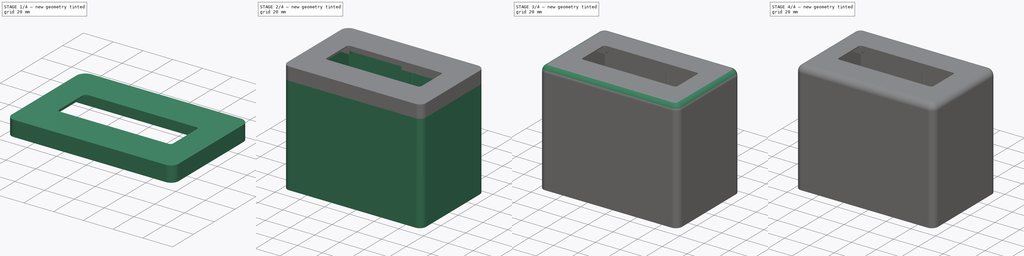
[diagram: build sequence overview — one tinted view per stage of 4, left to right]
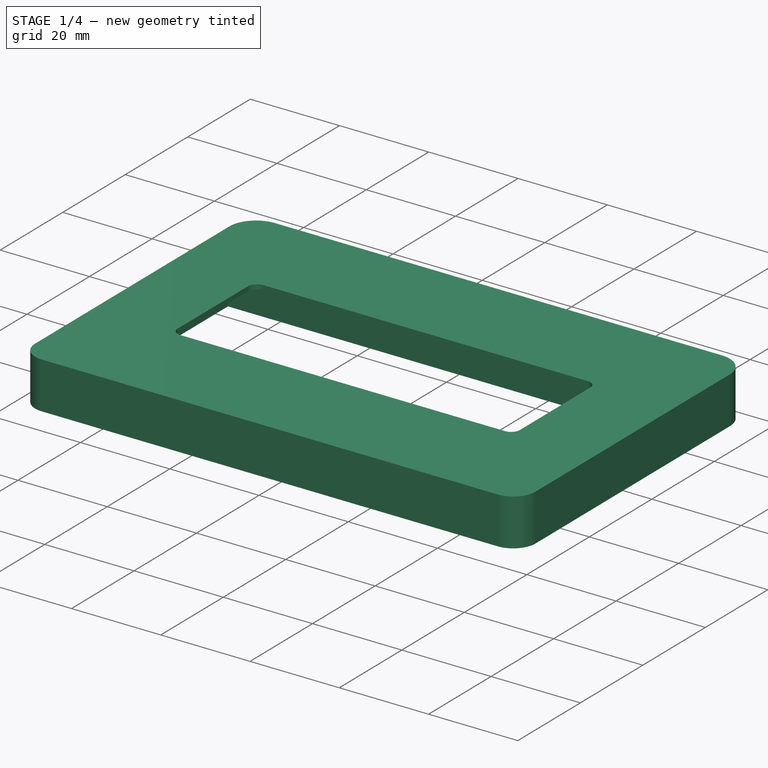
[diagram: stage 1 of 4 — iso view after this stage's code; geometry added in this stage tinted green]
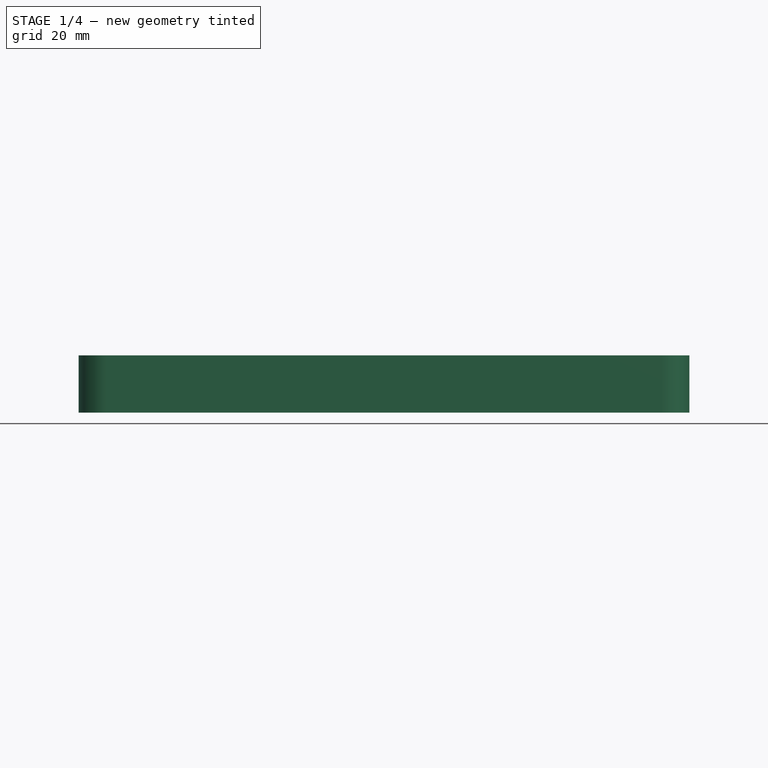
[diagram: stage 1 of 4 — front view after this stage's code; geometry added in this stage tinted green]
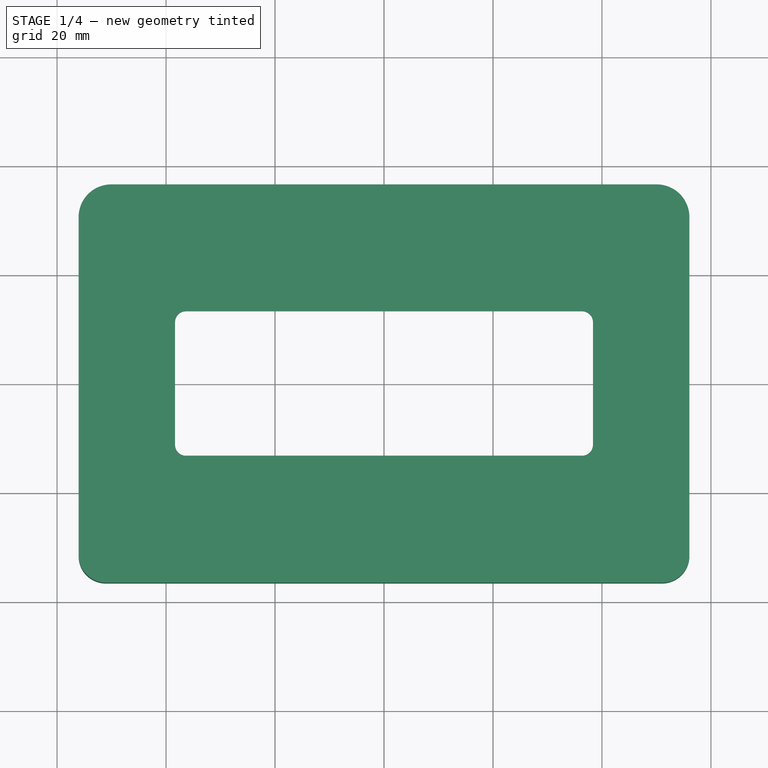
[diagram: stage 1 of 4 — top view after this stage's code; geometry added in this stage tinted green]
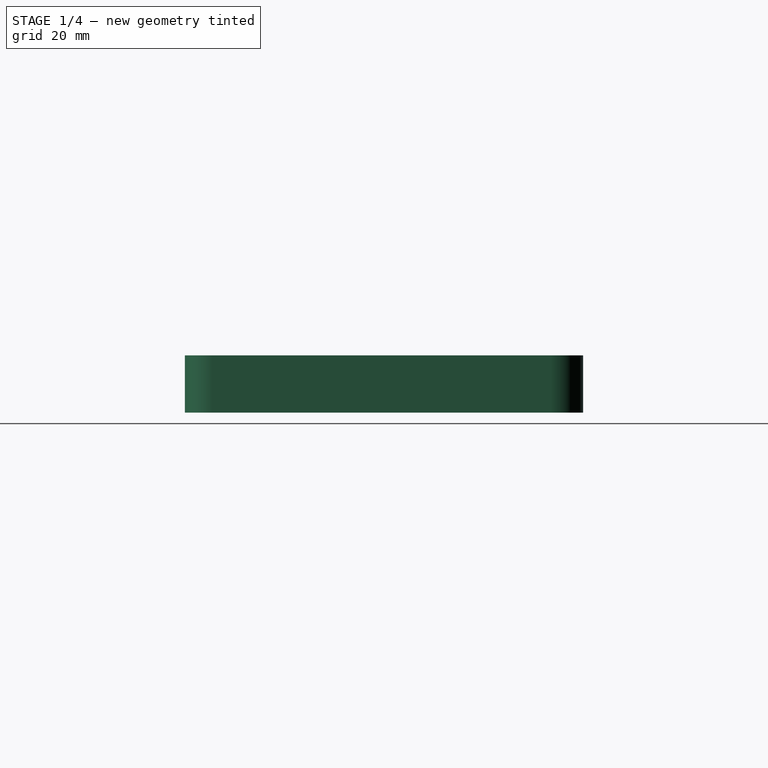
[diagram: stage 1 of 4 — right view after this stage's code; geometry added in this stage tinted green]
FCSTD DOCUMENT  (FreeCAD 0.20R29177 +426 (Git))
Label: box_lcd_cover
License: All rights reserved
LicenseURL: http://en.wikipedia.org/wiki/All_rights_reserved
objects: Sketcher::SketchObject×9, PartDesign::Pocket×7, PartDesign::Pad×2, PartDesign::Fillet×2, Spreadsheet::Sheet×1, PartDesign::Body×1
note: 32 computed .brp shape members not serialized (recipe doc carries the construction recipe); baked Part::Feature solids carry a one-line shape summary decoded from their .brp

FEATURE [Spreadsheet::Sheet] Spreadsheet  label="data"
  cells = A1=Name; B1=Value; A2=lcd_ylen; B2(lcd_ylen)==40mm; A3=lcd_xlen; B3(lcd_xlen)==98.09999999999999mm; A4=space; B4(space)==0.4mm; A5=base_lcd_ylen; B5(base_lcd_ylen)==60.1mm; A6=lcd_depth; B6(lcd_depth)==9.5mm; A7=solder_depth; B7(solder_depth)==2mm; A8=wall_side_len; B8(wall_side_len)==2mm; A9=cover_depth; B9(cover_depth)==1mm; A10=screen_xlen; B10(screen_xlen)==76.7mm; A11=screen_ylen; B11(screen_ylen)==26.5mm; A12=hole_dia; B12(hole_dia)==3.4mm; A13=screw_dia; B13(screw_dia)==2.9mm; A14=screw_depth; B14(screw_depth)==5mm; A15=button_len; B15(button_len)==6.4mm; A16=cover_button_
FEATURE [Sketcher::SketchObject] Sketch
  FullyConstrained = true
  MapMode = 5
  Support = -> [XY_Plane]
  expr: .Constraints.bot_rad = 5
  expr: .Constraints.top_rad = <<data>>.wall_side_len * 3
  expr: .Constraints.xlen = <<data>>.lcd_xlen + <<data>>.wall_side_len * 2
  expr: .Constraints.ylen = <<data>>.base_lcd_ylen + <<data>>.wall_side_len
  expr: Constraints[54] = <<data>>.base_lcd_ylen
  expr: Constraints[56] = <<data>>.lcd_xlen + <<data>>.space * 2
  sketch-geometry (25):
    g0: LineSegment StartX=-56.05 StartY=30.55 StartZ=0 EndX=-56.05 EndY=-31.55 EndZ=0
    g1: LineSegment StartX=56.05 StartY=-31.55 StartZ=0 EndX=56.05 EndY=30.55 EndZ=0
    g2: GeomPoint X=0 Y=0 Z=0
    g3: LineSegment StartX=-56.05 StartY=30.55 StartZ=0 EndX=56.05 EndY=30.55 EndZ=0
    g4: LineSegment StartX=-50.05 StartY=36.55 StartZ=0 EndX=0 EndY=36.55 EndZ=0
    g5: LineSegment StartX=0 StartY=36.55 StartZ=0 EndX=50.05 EndY=36.55 EndZ=0
    g6: ArcOfCircle CenterX=-50.05 CenterY=30.55 CenterZ=0 NormalX=0 NormalY=0 NormalZ=1 AngleXU=0 Radius=6 StartAngle=1.5708 EndAngle=3.14159
    g7: ArcOfCircle CenterX=50.05 CenterY=30.55 CenterZ=0 NormalX=0 NormalY=0 NormalZ=1 AngleXU=0 Radius=6 StartAngle=3e-16 EndAngle=1.5708
    g8: LineSegment StartX=-50.05 StartY=30.55 StartZ=0 EndX=-50.05 EndY=36.55 EndZ=0
    g9: LineSegment StartX=50.05 StartY=36.55 StartZ=0 EndX=50.05 EndY=30.55 EndZ=0
    g10: ArcOfCircle CenterX=-51.05 CenterY=-31.55 CenterZ=0 NormalX=0 NormalY=0 NormalZ=1 AngleXU=0 Radius=5 StartAngle=3.14159 EndAngle=4.71239
    g11: ArcOfCircle CenterX=51.05 CenterY=-31.55 CenterZ=0 NormalX=0 NormalY=0 NormalZ=1 AngleXU=0 Radius=5 StartAngle=4.71239 EndAngle=6.28319
    g12: LineSegment StartX=-51.05 StartY=-31.55 StartZ=0 EndX=-56.05 EndY=-31.55 EndZ=0
    g13: LineSegment StartX=-51.05 StartY=-31.55 StartZ=0 EndX=-51.05 EndY=-36.55 EndZ=0
    g14: LineSegment StartX=51.05 StartY=-31.55 StartZ=0 EndX=51.05 EndY=-36.55 EndZ=0
    g15: LineSegment StartX=56.05 StartY=-31.55 StartZ=0 EndX=51.05 EndY=-31.55 EndZ=0
    g16: LineSegment StartX=0 StartY=0 StartZ=0 EndX=0 EndY=-36.55 EndZ=0
    g17: LineSegment StartX=0 StartY=0 StartZ=0 EndX=0 EndY=36.55 EndZ=0
    g18: GeomPoint X=0 Y=0 Z=0
    g19: LineSegment StartX=-49.45 StartY=30.05 StartZ=0 EndX=-49.45 EndY=-30.05 EndZ=0
    g20: LineSegment StartX=-49.45 StartY=-30.05 StartZ=0 EndX=49.45 EndY=-30.05 EndZ=0
    g21: LineSegment StartX=49.45 StartY=-30.05 StartZ=0 EndX=49.45 EndY=30.05 EndZ=0
    g22: LineSegment StartX=49.45 StartY=30.05 StartZ=0 EndX=-49.45 EndY=30.05 EndZ=0
    g23: GeomPoint X=0 Y=0 Z=0
    g24: LineSegment StartX=-51.05 StartY=-36.55 StartZ=0 EndX=51.05 EndY=-36.55 EndZ=0
  constraints (62):
    c: Vertical(g0)
    c: Vertical(g1)
    c: Coincident(g2,g-1)
    c: Coincident(g3,g0)
    c: Coincident(g3,g1)
    c: Horizontal(g3)
    c: PointOnObject(g4,g-2)
    c: Horizontal(g4)
    c: Coincident(g5,g4)
    c: Horizontal(g5)
    c: Equal(g5,g4)
    c: Coincident(g6,g4)
    c: Coincident(g6,g0)
    c: Coincident(g7,g5)
    c: Coincident(g7,g1)
    c: PointOnObject(g7,g3)
    c: PointOnObject(g6,g3)
    c: Coincident(g8,g6)
    c: Coincident(g8,g4)
    c: Vertical(g8)
    c: Coincident(g9,g5)
    c: Coincident(g9,g7)
    c: Coincident(g13,g10) = -1.5708
    c: Tangent(g0,g10) = -1.5708
    c: Tangent(g1,g11) = -1.5708
    c: Coincident(g14,g11) = -1.5708
    c: Equal(g11,g10)
    c: Coincident(g12,g10)
    c: Coincident(g12,g0)
    c: Coincident(g13,g10)
    c: Coincident(g14,g11)
    c: Coincident(g15,g1)
    c: Coincident(g15,g11)
    c: Vertical(g9)
    c: Coincident(g16,g2)
    c: Vertical(g16)
    c: Coincident(g17,g2)
    c: Coincident(g17,g4)
    c: Equal(g17,g16)
    c: DistanceY(g13,g13) = 5  'bot_rad'
    c: DistanceX(g13,g14) = 102.1  'xlen'
    c: DistanceY(g0,g0) = 62.1  'ylen'
    c: DistanceY(g8,g8) = 6  'top_rad'
    c: Coincident(g18,g2)
    c: Coincident(g19,g20)
    c: Coincident(g20,g21)
    c: Coincident(g21,g22)
    c: Coincident(g22,g19)
    c: Horizontal(g20)
    c: Horizontal(g22)
    c: Vertical(g19)
    c: Vertical(g21)
    c: Symmetric(g20,g19,g23)
    c: Coincident(g23,g2)
    c: DistanceY(g21,g21) = 60.1
    c: Vertical(g13)
    c: DistanceX(g20,g20) = 98.9
    c: Vertical(g14)
    c: Coincident(g24,g10)
    c: Coincident(g24,g11)
    c: Horizontal(g24)
    c: PointOnObject(g16,g24)
FEATURE [PartDesign::Pad] Pad
  Direction = (0,0,1)
  Length = 10.5
  Length2 = 10
  Profile = -> Sketch
  ReferenceAxis = -> Sketch [N_Axis]
  Type = 0
  expr: Length = <<data>>.lcd_depth + <<data>>.cover_depth
FEATURE [Sketcher::SketchObject] Sketch001
  FullyConstrained = true
  MapMode = 5
  Support = -> [XY_Plane]
  expr: Constraints[10] = <<data>>.lcd_ylen + <<data>>.space * 2
  expr: Constraints[11] = <<data>>.lcd_xlen + <<data>>.space
  sketch-geometry (5):
    g0: LineSegment StartX=-49.25 StartY=20.4 StartZ=0 EndX=-49.25 EndY=-20.4 EndZ=0
    g1: LineSegment StartX=-49.25 StartY=-20.4 StartZ=0 EndX=49.25 EndY=-20.4 EndZ=0
    g2: LineSegment StartX=49.25 StartY=-20.4 StartZ=0 EndX=49.25 EndY=20.4 EndZ=0
    g3: LineSegment StartX=49.25 StartY=20.4 StartZ=0 EndX=-49.25 EndY=20.4 EndZ=0
    g4: GeomPoint X=0 Y=0 Z=0
  constraints (12):
    c: Coincident(g0,g1)
    c: Coincident(g1,g2)
    c: Coincident(g2,g3)
    c: Coincident(g3,g0)
    c: Horizontal(g1)
    c: Horizontal(g3)
    c: Vertical(g0)
    c: Vertical(g2)
    c: Symmetric(g1,g0,g4)
    c: Coincident(g4,g-1)
    c: DistanceY(g0,g0) = 40.8
    c: DistanceX(g1,g1) = 98.5
FEATURE [PartDesign::Pocket] Pocket
  BaseFeature = -> Pad
  Direction = (0,0,-1)
  Length = 9.5
  Length2 = 5
  Profile = -> Sketch001
  ReferenceAxis = -> Sketch001 [N_Axis]
  Reversed = true
  Type = 0
  expr: Length = <<data>>.lcd_depth
FEATURE [Sketcher::SketchObject] Sketch002
  FullyConstrained = true
  MapMode = 5
  Support = -> [XY_Plane]
  expr: Constraints[33] = <<data>>.screen_xlen
  expr: Constraints[34] = <<data>>.screen_ylen
  sketch-geometry (14):
    g0: ArcOfCircle CenterX=-36.35 CenterY=11.25 CenterZ=0 NormalX=0 NormalY=0 NormalZ=1 AngleXU=0 Radius=2 StartAngle=1.5708 EndAngle=3.14159
    g1: LineSegment StartX=-36.35 StartY=13.25 StartZ=0 EndX=36.35 EndY=13.25 EndZ=0
    g2: ArcOfCircle CenterX=36.35 CenterY=11.25 CenterZ=0 NormalX=0 NormalY=0 NormalZ=1 AngleXU=0 Radius=2 StartAngle=4e-16 EndAngle=1.5708
    g3: LineSegment StartX=38.35 StartY=11.25 StartZ=0 EndX=38.35 EndY=-11.25 EndZ=0
    g4: ArcOfCircle CenterX=36.35 CenterY=-11.25 CenterZ=0 NormalX=0 NormalY=0 NormalZ=1 AngleXU=0 Radius=2 StartAngle=4.71239 EndAngle=6.28319
    g5: LineSegment StartX=36.35 StartY=-13.25 StartZ=0 EndX=-36.35 EndY=-13.25 EndZ=0
    g6: ArcOfCircle CenterX=-36.35 CenterY=-11.25 CenterZ=0 NormalX=0 NormalY=0 NormalZ=1 AngleXU=0 Radius=2 StartAngle=3.14159 EndAngle=4.71239
    g7: LineSegment StartX=-38.35 StartY=-11.25 StartZ=0 EndX=-38.35 EndY=11.25 EndZ=0
    g8: GeomPoint X=-38.35 Y=13.25 Z=0
    g9: GeomPoint X=38.35 Y=-13.25 Z=0
    g10: LineSegment StartX=0 StartY=0 StartZ=0 EndX=0 EndY=13.25 EndZ=0
    g11: LineSegment StartX=0 StartY=0 StartZ=0 EndX=0 EndY=-13.25 EndZ=0
    g12: LineSegment StartX=0 StartY=0 StartZ=0 EndX=-38.35 EndY=0 EndZ=0
    g13: LineSegment StartX=0 StartY=0 StartZ=0 EndX=38.35 EndY=0 EndZ=0
  constraints (36):
    c: Tangent(g0,g1) = 1.5708
    c: Tangent(g1,g2) = 1.5708
    c: Tangent(g2,g3) = 1.5708
    c: Tangent(g3,g4) = 1.5708
    c: Tangent(g4,g5) = 1.5708
    c: Tangent(g5,g6) = 1.5708
    c: Tangent(g6,g7) = 1.5708
    c: Tangent(g7,g0) = 1.5708
    c: Horizontal(g1)
    c: Horizontal(g5)
    c: Vertical(g3)
    c: Vertical(g7)
    c: Equal(g0,g2)
    c: Equal(g2,g4)
    c: Equal(g4,g6)
    c: PointOnObject(g8,g1)
    c: PointOnObject(g8,g7)
    c: PointOnObject(g9,g3)
    c: PointOnObject(g9,g5)
    c: Coincident(g10,g-1)
    c: PointOnObject(g10,g1)
    c: Vertical(g10)
    c: Coincident(g11,g10)
    c: PointOnObject(g11,g5)
    c: Vertical(g11)
    c: Coincident(g12,g10)
    c: PointOnObject(g12,g7)
    c: Horizontal(g12)
    c: Coincident(g13,g10)
    c: PointOnObject(g13,g3)
    c: Horizontal(g13)
    c: Equal(g10,g11)
    c: Equal(g12,g13)
    c: DistanceX(g6,g3) = 76.7
    c: DistanceY(g5,g0) = 26.5
    c: DistanceX(g0,g0) = 2
FEATURE [PartDesign::Pocket] Pocket001
  BaseFeature = -> Pocket
  Direction = (0,0,-1)
  Length = 5
  Length2 = 5
  Profile = -> Sketch002
  ReferenceAxis = -> Sketch002 [N_Axis]
  Reversed = true
  Type = 1
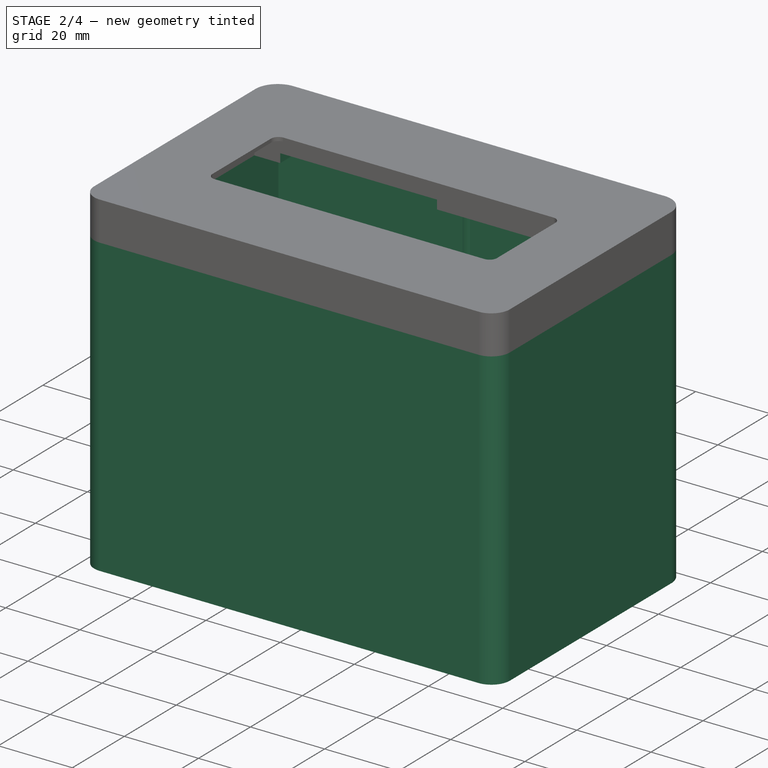
[diagram: stage 2 of 4 — iso view after this stage's code; geometry added in this stage tinted green]
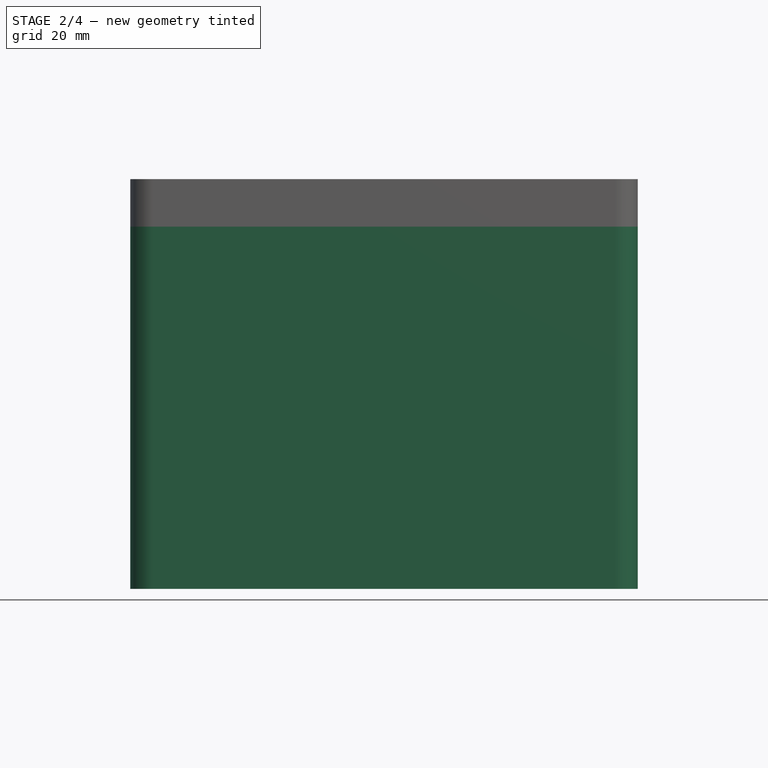
[diagram: stage 2 of 4 — front view after this stage's code; geometry added in this stage tinted green]
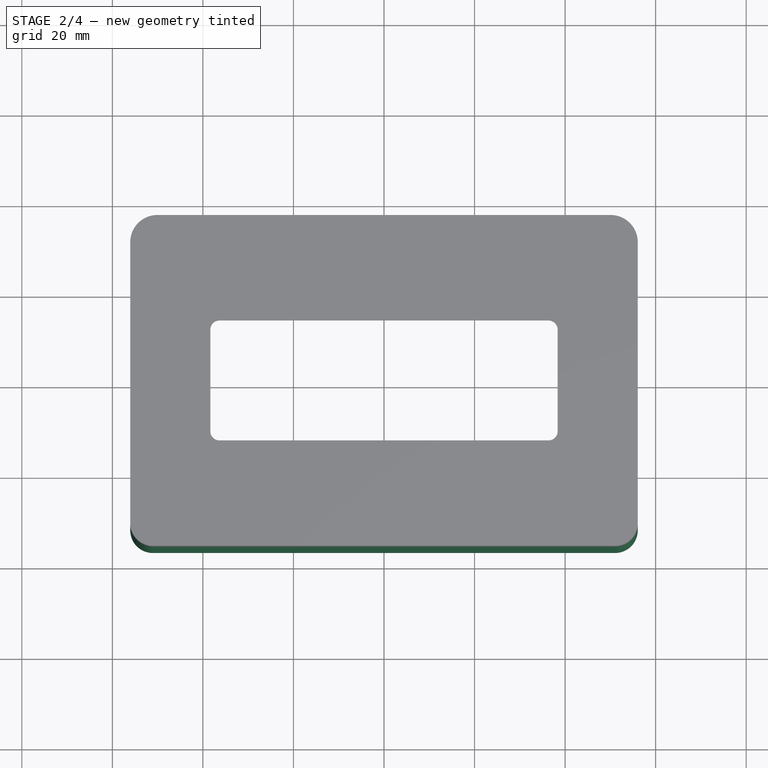
[diagram: stage 2 of 4 — top view after this stage's code; geometry added in this stage tinted green]
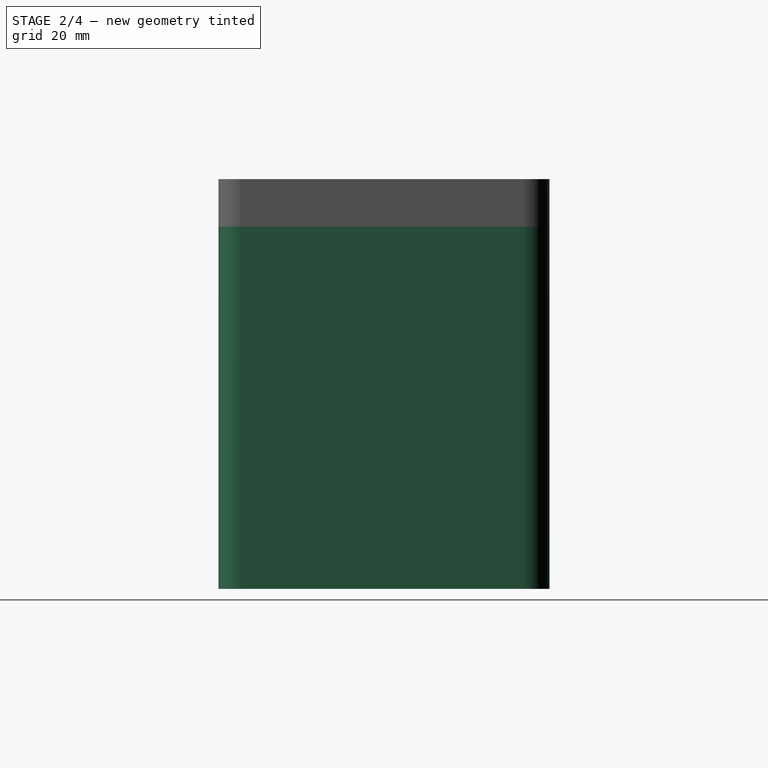
[diagram: stage 2 of 4 — right view after this stage's code; geometry added in this stage tinted green]
FEATURE [Sketcher::SketchObject] Sketch003
  FullyConstrained = true
  MapMode = 5
  Support = -> [XY_Plane]
  expr: Constraints[10] = <<data>>.lcd_xlen - <<data>>.hole_dia
  expr: Constraints[11] = <<data>>.base_lcd_ylen - <<data>>.hole_dia
  expr: Constraints[19] = <<data>>.screw_dia
  sketch-geometry (9):
    g0: LineSegment StartX=-47.35 StartY=28.35 StartZ=0 EndX=-47.35 EndY=-28.35 EndZ=0
    g1: LineSegment StartX=-47.35 StartY=-28.35 StartZ=0 EndX=47.35 EndY=-28.35 EndZ=0
    g2: LineSegment StartX=47.35 StartY=-28.35 StartZ=0 EndX=47.35 EndY=28.35 EndZ=0
    g3: LineSegment StartX=47.35 StartY=28.35 StartZ=0 EndX=-47.35 EndY=28.35 EndZ=0
    g4: GeomPoint X=0 Y=0 Z=0
    g5: Circle CenterX=-47.35 CenterY=28.35 CenterZ=0 NormalX=0 NormalY=0 NormalZ=1 AngleXU=0 Radius=1.45
    g6: Circle CenterX=47.35 CenterY=28.35 CenterZ=0 NormalX=0 NormalY=0 NormalZ=1 AngleXU=0 Radius=1.45
    g7: Circle CenterX=47.35 CenterY=-28.35 CenterZ=0 NormalX=0 NormalY=0 NormalZ=1 AngleXU=0 Radius=1.45
    g8: Circle CenterX=-47.35 CenterY=-28.35 CenterZ=0 NormalX=0 NormalY=0 NormalZ=1 AngleXU=0 Radius=1.45
  constraints (20):
    c: Coincident(g0,g1)
    c: Coincident(g1,g2)
    c: Coincident(g2,g3)
    c: Coincident(g3,g0)
    c: Horizontal(g1)
    c: Horizontal(g3)
    c: Vertical(g0)
    c: Vertical(g2)
    c: Symmetric(g1,g0,g4)
    c: Coincident(g4,g-1)
    c: DistanceX(g1,g1) = 94.7
    c: DistanceY(g2,g2) = 56.7
    c: Coincident(g5,g0)
    c: Coincident(g6,g2)
    c: Coincident(g7,g1)
    c: Coincident(g8,g0)
    c: Equal(g6,g7)
    c: Equal(g7,g8)
    c: Equal(g8,g5)
    c: Diameter(g5) = 2.9
FEATURE [PartDesign::Pocket] Pocket002
  BaseFeature = -> Pocket001
  Direction = (0,0,-1)
  Length = 5.4
  Length2 = 5
  Profile = -> Sketch003
  ReferenceAxis = -> Sketch003 [N_Axis]
  Reversed = true
  Type = 0
  expr: Length = <<data>>.screw_depth + <<data>>.space
FEATURE [Sketcher::SketchObject] Sketch004
  FullyConstrained = true
  MapMode = 5
  Support = -> [XY_Plane]
  expr: Constraints[10] = <<data>>.base_lcd_ylen
  expr: Constraints[11] = <<data>>.lcd_xlen
  sketch-geometry (9):
    g0: LineSegment StartX=-49.05 StartY=30.05 StartZ=0 EndX=-49.05 EndY=-30.05 EndZ=0
    g1: LineSegment StartX=-49.05 StartY=-30.05 StartZ=0 EndX=49.05 EndY=-30.05 EndZ=0
    g2: LineSegment StartX=49.05 StartY=-30.05 StartZ=0 EndX=49.05 EndY=30.05 EndZ=0
    g3: LineSegment StartX=49.05 StartY=30.05 StartZ=0 EndX=-49.05 EndY=30.05 EndZ=0
    g4: GeomPoint X=0 Y=0 Z=0
    g5: LineSegment StartX=-42.25 StartY=30.05 StartZ=0 EndX=0 EndY=30.05 EndZ=0
    g6: LineSegment StartX=0 StartY=30.05 StartZ=0 EndX=0 EndY=15.05 EndZ=0
    g7: LineSegment StartX=0 StartY=15.05 StartZ=0 EndX=-42.25 EndY=15.05 EndZ=0
    g8: LineSegment StartX=-42.25 StartY=15.05 StartZ=0 EndX=-42.25 EndY=30.05 EndZ=0
  constraints (24):
    c: Coincident(g0,g1)
    c: Coincident(g1,g2)
    c: Coincident(g2,g3)
    c: Coincident(g3,g0)
    c: Horizontal(g1)
    c: Horizontal(g3)
    c: Vertical(g0)
    c: Vertical(g2)
    c: Symmetric(g1,g0,g4)
    c: Coincident(g4,g-1)
    c: DistanceY(g0,g0) = 60.1
    c: DistanceX(g1,g1) = 98.1
    c: Coincident(g5,g6)
    c: Coincident(g6,g7)
    c: Coincident(g7,g8)
    c: Coincident(g8,g5)
    c: Horizontal(g5)
    c: Horizontal(g7)
    c: Vertical(g6)
    c: Vertical(g8)
    c: PointOnObject(g5,g3)
    c: PointOnObject(g6,g-2)
    c: DistanceX(g0,g5) = 6.8
    c: DistanceY(g8,g8) = 15
FEATURE [PartDesign::Pocket] Pocket003
  BaseFeature = -> Pocket002
  Direction = (0,0,-1)
  Length = 2.4
  Length2 = 5
  Profile = -> Sketch004
  ReferenceAxis = -> Sketch004 [N_Axis]
  Reversed = true
  Type = 0
  expr: Length = <<data>>.solder_depth + <<data>>.space
FEATURE [Sketcher::SketchObject] Sketch005
  FullyConstrained = true
  MapMode = 5
  Support = -> [XY_Plane]
  expr: Constraints[24] = Sketch.Constraints.xlen
  expr: Constraints[32] = Sketch.Constraints.bot_rad
  expr: Constraints[46] = Sketch.Constraints.top_rad
  expr: Constraints[47] = Sketch.Constraints.ylen
  expr: Constraints[4] = <<data>>.base_lcd_ylen + <<data>>.space * 8
  expr: Constraints[5] = <<data>>.lcd_xlen + <<data>>.space * 8
  sketch-geometry (31):
    g0: LineSegment StartX=-50.65 StartY=31.65 StartZ=0 EndX=-50.65 EndY=-31.65 EndZ=0
    g1: LineSegment StartX=50.65 StartY=-31.65 StartZ=0 EndX=50.65 EndY=31.65 EndZ=0
    g2: GeomPoint X=0 Y=0 Z=0
    g3: LineSegment StartX=-56.05 StartY=-31.55 StartZ=0 EndX=-56.05 EndY=30.55 EndZ=0
    g4: LineSegment StartX=56.05 StartY=30.55 StartZ=0 EndX=56.05 EndY=-31.55 EndZ=0
    g5: LineSegment StartX=-51.05 StartY=-36.55 StartZ=0 EndX=51.05 EndY=-36.55 EndZ=0
    g6: LineSegment StartX=-50.05 StartY=36.55 StartZ=0 EndX=50.05 EndY=36.55 EndZ=0
    g7: ArcOfCircle CenterX=-50.05 CenterY=30.55 CenterZ=0 NormalX=0 NormalY=0 NormalZ=1 AngleXU=0 Radius=6 StartAngle=1.5708 EndAngle=3.14159
    g8: ArcOfCircle CenterX=50.05 CenterY=30.55 CenterZ=0 NormalX=0 NormalY=0 NormalZ=1 AngleXU=0 Radius=6 StartAngle=0 EndAngle=1.5708
    g9: ArcOfCircle CenterX=51.05 CenterY=-31.55 CenterZ=0 NormalX=0 NormalY=0 NormalZ=1 AngleXU=0 Radius=5 StartAngle=4.71239 EndAngle=6.28319
    g10: ArcOfCircle CenterX=-51.05 CenterY=-31.55 CenterZ=0 NormalX=0 NormalY=0 NormalZ=1 AngleXU=0 Radius=5 StartAngle=3.14159 EndAngle=4.71239
    g11: LineSegment StartX=-56.05 StartY=-31.55 StartZ=0 EndX=-51.05 EndY=-31.55 EndZ=0
    g12: LineSegment StartX=-51.05 StartY=-31.55 StartZ=0 EndX=-51.05 EndY=-36.55 EndZ=0
    g13: LineSegment StartX=51.05 StartY=-31.55 StartZ=0 EndX=51.05 EndY=-36.55 EndZ=0
    g14: LineSegment StartX=56.05 StartY=-31.55 StartZ=0 EndX=51.05 EndY=-31.55 EndZ=0
    g15: LineSegment StartX=-56.05 StartY=30.55 StartZ=0 EndX=-50.05 EndY=30.55 EndZ=0
    g16: LineSegment StartX=-50.05 StartY=36.55 StartZ=0 EndX=-50.05 EndY=30.55 EndZ=0
    g17: LineSegment StartX=50.05 StartY=30.55 StartZ=0 EndX=56.05 EndY=30.55 EndZ=0
    g18: LineSegment StartX=50.05 StartY=30.55 StartZ=0 EndX=50.05 EndY=36.55 EndZ=0
    g19: LineSegment StartX=0 StartY=0 StartZ=0 EndX=0 EndY=-36.55 EndZ=0
    g20: LineSegment StartX=0 StartY=0 StartZ=0 EndX=-56.05 EndY=0 EndZ=0
    g21: LineSegment StartX=0 StartY=0 StartZ=0 EndX=56.05 EndY=0 EndZ=0
    g22: LineSegment StartX=0 StartY=0 StartZ=0 EndX=0 EndY=36.55 EndZ=0
    g23: LineSegment StartX=-50.65 StartY=31.65 StartZ=0 EndX=-1 EndY=31.65 EndZ=0
    g24: LineSegment StartX=50.65 StartY=31.65 StartZ=0 EndX=1 EndY=31.65 EndZ=0
    g25: ArcOfCircle CenterX=0 CenterY=36.55 CenterZ=0 NormalX=0 NormalY=0 NormalZ=1 AngleXU=0 Radius=5.001 StartAngle=4.51107 EndAngle=4.91371
    g26: LineSegment StartX=-1 StartY=31.65 StartZ=0 EndX=0 EndY=31.65 EndZ=0
    g27: LineSegment StartX=1 StartY=31.65 StartZ=0 EndX=0 EndY=31.65 EndZ=0
    g28: LineSegment StartX=-50.65 StartY=-31.65 StartZ=0 EndX=-1 EndY=-31.65 EndZ=0
    g29: LineSegment StartX=50.65 StartY=-31.65 StartZ=0 EndX=1 EndY=-31.65 EndZ=0
    g30: ArcOfCircle CenterX=0 CenterY=-36.55 CenterZ=0 NormalX=0 NormalY=0 NormalZ=1 AngleXU=0 Radius=5.001 StartAngle=1.36948 EndAngle=1.77211
  constraints (88):
    c: Vertical(g0)
    c: Vertical(g1)
    c: Symmetric(g1,g0,g2)
    c: Coincident(g2,g-1)
    c: DistanceY(g1,g1) = 63.3
    c: DistanceX(g0,g1) = 101.3
    c: Vertical(g3)
    c: Vertical(g4)
    c: Horizontal(g5)
    c: Horizontal(g6)
    c: Coincident(g7,g6)
    c: Coincident(g7,g3)
    c: Coincident(g8,g6)
    c: Coincident(g8,g4)
    c: Coincident(g9,g4)
    c: Coincident(g9,g5)
    c: Coincident(g10,g5)
    c: Coincident(g10,g3)
    c: Coincident(g11,g3)
    c: Coincident(g11,g10)
    c: Coincident(g12,g10)
    c: Coincident(g12,g5)
    c: Horizontal(g11)
    c: Vertical(g12)
    c: DistanceX(g5,g5) = 102.1
    c: Coincident(g13,g9)
    c: Coincident(g13,g5)
    c: Coincident(g14,g4)
    c: Coincident(g14,g9)
    c: Horizontal(g14)
    c: Vertical(g13)
    c: Equal(g11,g14)
    c: DistanceX(g11,g11) = 5
    c: Coincident(g15,g3)
    c: Coincident(g16,g6)
    c: Coincident(g16,g7)
    c: Coincident(g15,g7)
    c: Horizontal(g15)
    c: Vertical(g16)
    c: Coincident(g17,g8)
    c: Coincident(g17,g4)
    c: Coincident(g18,g8)
    c: Coincident(g18,g6)
    c: Vertical(g18)
    c: Horizontal(g17)
    c: Equal(g18,g16)
    c: DistanceX(g15,g15) = 6
    c: DistanceY(g3,g3) = 62.1
    c: Coincident(g19,g2)
    c: PointOnObject(g19,g5)
    c: Vertical(g19)
    c: Coincident(g20,g2)
    c: PointOnObject(g20,g3)
    c: Horizontal(g20)
    c: Coincident(g21,g2)
    c: PointOnObject(g21,g4)
    c: Horizontal(g21)
    c: Coincident(g22,g2)
    c: PointOnObject(g22,g6)
    c: Vertical(g22)
    c: Equal(g22,g19)
    c: Equal(g20,g21)
    c: DistanceY(g19,g22) = 73.1  'ylen'
    c: DistanceX(g20,g21) = 112.1  'xlen'
    c: Coincident(g23,g0)
    c: Horizontal(g23)
    c: Coincident(g24,g1)
    c: Horizontal(g24)
    c: Coincident(g25,g23)
    c: Coincident(g25,g24)
    c: Coincident(g25,g22)
    c: Coincident(g26,g23)
    c: PointOnObject(g26,g22)
    c: Horizontal(g26)
    c: Coincident(g27,g24)
    c: Coincident(g27,g26)
    c: Horizontal(g27)
    c: Coincident(g28,g0)
    c: Horizontal(g28)
    c: Coincident(g29,g1)
    c: Horizontal(g29)
    c: Coincident(g30,g28)
    c: Coincident(g30,g29)
    c: PointOnObject(g30,g19)
    c: Equal(g25,g30)
    c: Equal(g23,g28)
    c: Equal(g29,g28)
    c: DistanceX(g26,g26) = 1
FEATURE [PartDesign::Pad] Pad001
  BaseFeature = -> Pocket003
  Direction = (0,0,1)
  Length = 80
  Length2 = 10
  Profile = -> Sketch005
  ReferenceAxis = -> Sketch005 [N_Axis]
  Reversed = true
  Type = 0
  expr: Length = 80
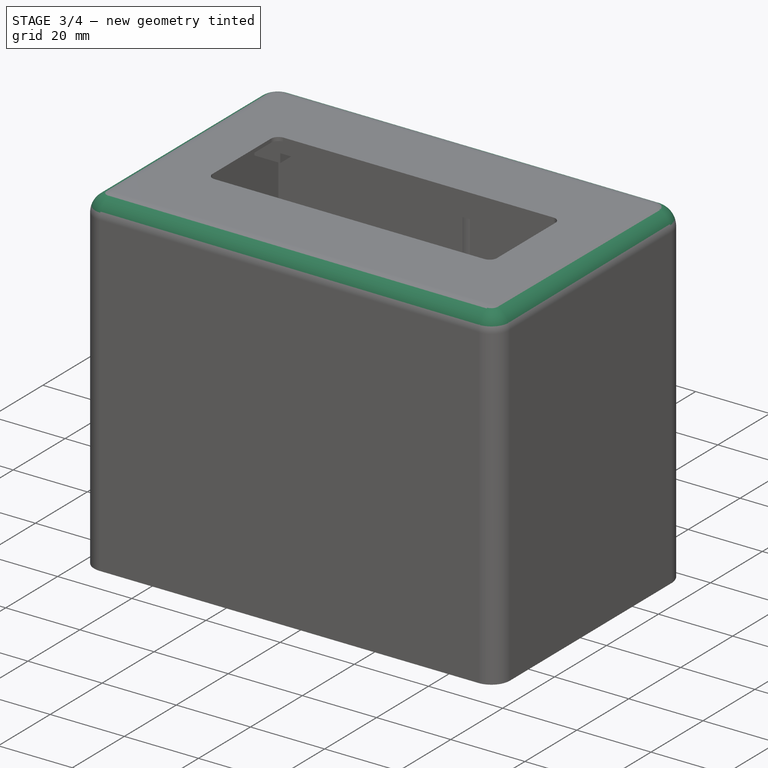
[diagram: stage 3 of 4 — iso view after this stage's code; geometry added in this stage tinted green]
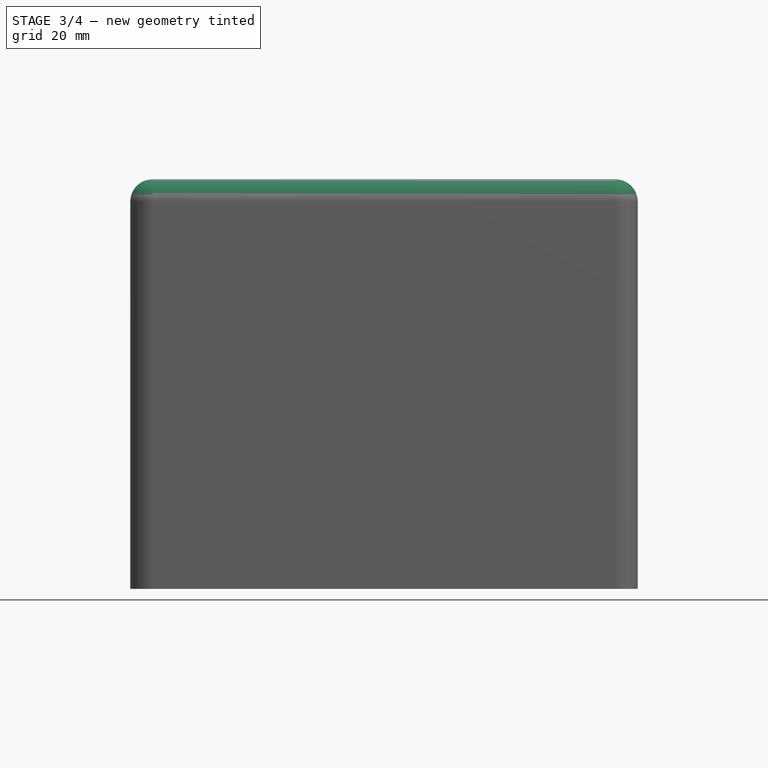
[diagram: stage 3 of 4 — front view after this stage's code; geometry added in this stage tinted green]
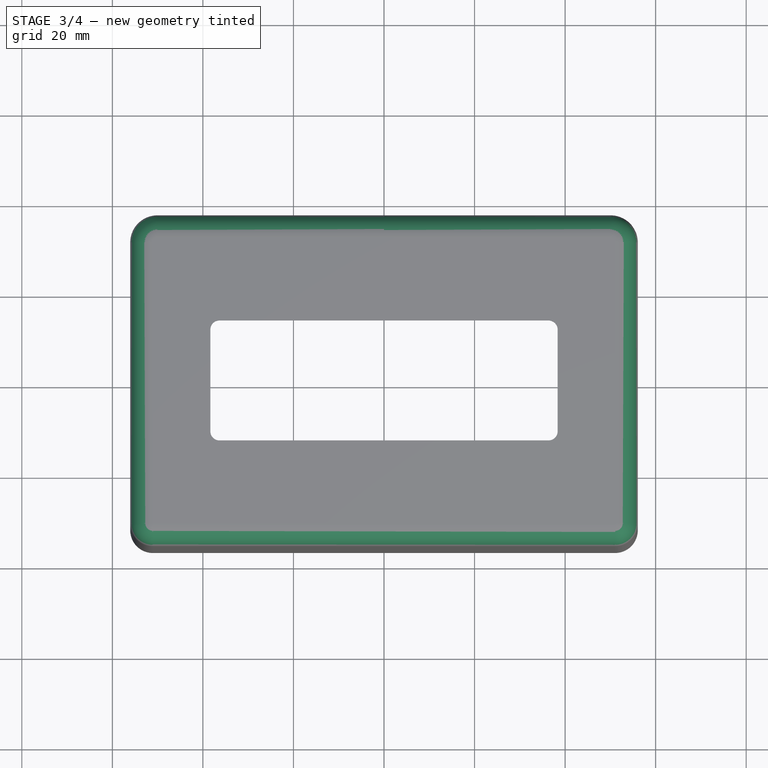
[diagram: stage 3 of 4 — top view after this stage's code; geometry added in this stage tinted green]
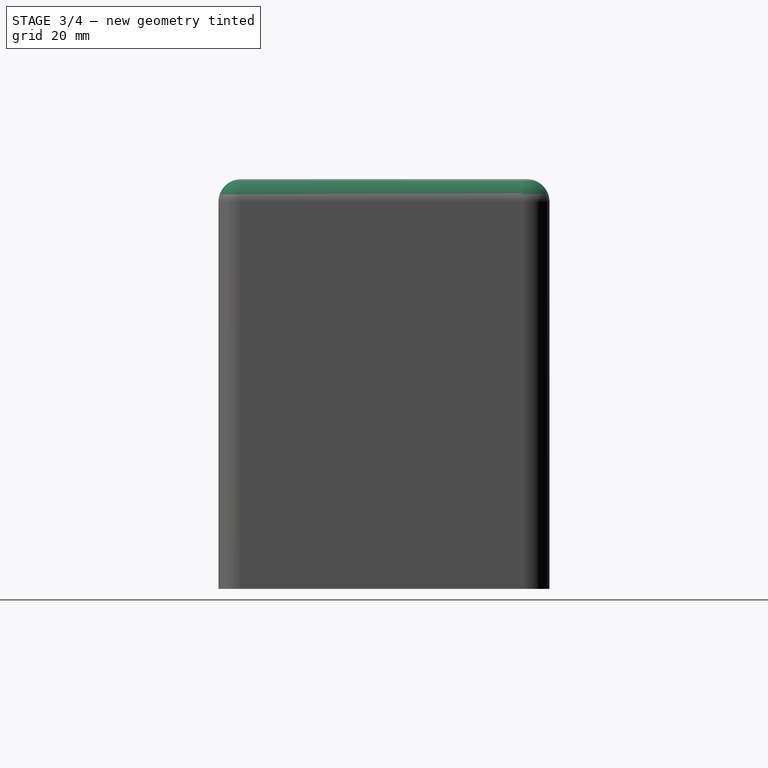
[diagram: stage 3 of 4 — right view after this stage's code; geometry added in this stage tinted green]
FEATURE [PartDesign::Fillet] Fillet
  Base = -> Pad001 [Edge7,Edge14,Edge18,Edge10,Edge17]
  BaseFeature = -> Pad001
  Radius = 5
  SupportTransform = false
  UseAllEdges = false
FEATURE [Sketcher::SketchObject] Sketch006
  AttachmentOffset = pos=(0,0,-80) rot=(0,0,1;0rad)
  FullyConstrained = true
  MapMode = 5
  Placement = pos=(0,0,-80) rot=(0,0,1;0rad)
  Support = -> [XY_Plane]
  expr: .AttachmentOffset.Base.z = -<<Pad001>>.Length
  expr: Constraints[4] = Sketch005.Constraints.ylen - <<data>>.wall_side_len * 2
  expr: Constraints[9] = <<data>>.screw_dia
  sketch-geometry (4):
    g0: LineSegment StartX=0 StartY=0 StartZ=0 EndX=0 EndY=34.55 EndZ=0
    g1: LineSegment StartX=0 StartY=0 StartZ=0 EndX=0 EndY=-34.55 EndZ=0
    g2: Circle CenterX=0 CenterY=-34.55 CenterZ=0 NormalX=0 NormalY=0 NormalZ=1 AngleXU=0 Radius=1.45
    g3: Circle CenterX=0 CenterY=34.55 CenterZ=0 NormalX=0 NormalY=0 NormalZ=1 AngleXU=0 Radius=1.45
  constraints (10):
    c: Coincident(g0,g-1)
    c: PointOnObject(g0,g-2)
    c: Coincident(g1,g0)
    c: PointOnObject(g1,g-2)
    c: DistanceY(g1,g0) = 69.1
    c: Equal(g1,g0)
    c: Coincident(g2,g1)
    c: Coincident(g3,g0)
    c: Equal(g2,g3)
    c: Diameter(g2) = 2.9
FEATURE [PartDesign::Pocket] Pocket004
  BaseFeature = -> Fillet
  Direction = (0,0,-1)
  Length = 5.4
  Length2 = 5
  Profile = -> Sketch006
  ReferenceAxis = -> Sketch006 [N_Axis]
  Reversed = true
  Type = 0
  expr: Length = <<data>>.screw_depth + <<data>>.space
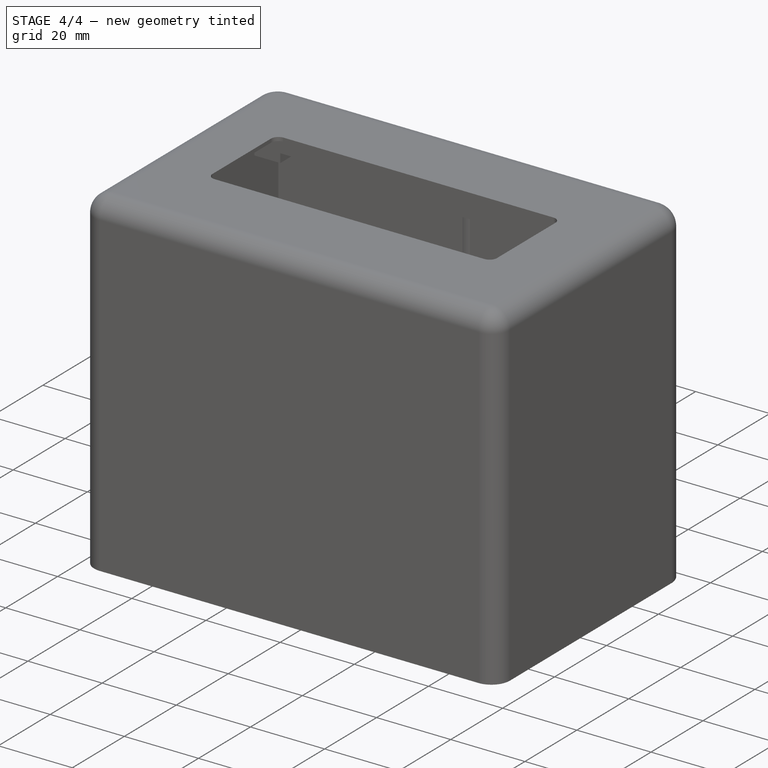
[diagram: stage 4 of 4 — iso view after this stage's code; geometry added in this stage tinted green]
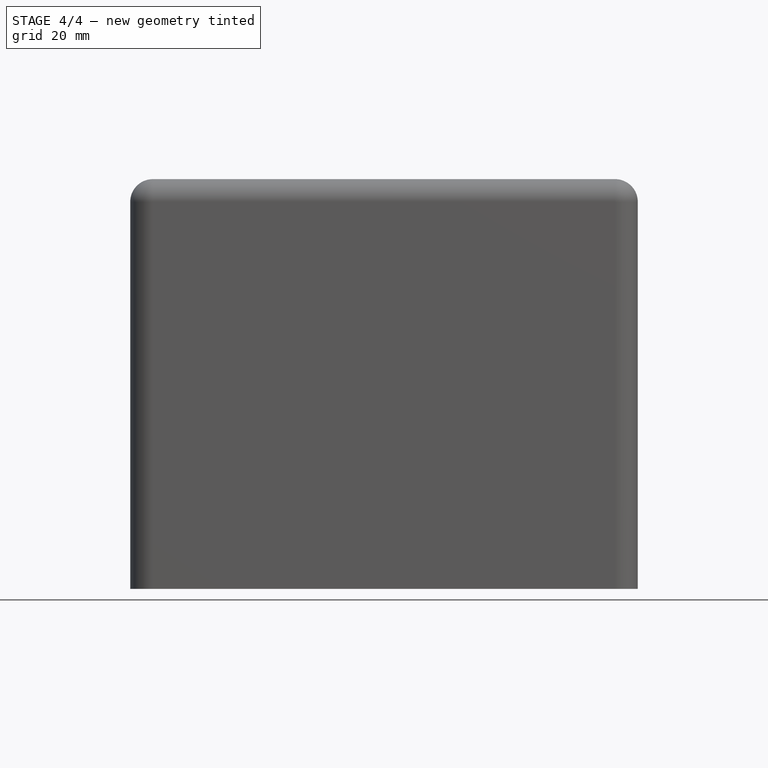
[diagram: stage 4 of 4 — front view after this stage's code; geometry added in this stage tinted green]
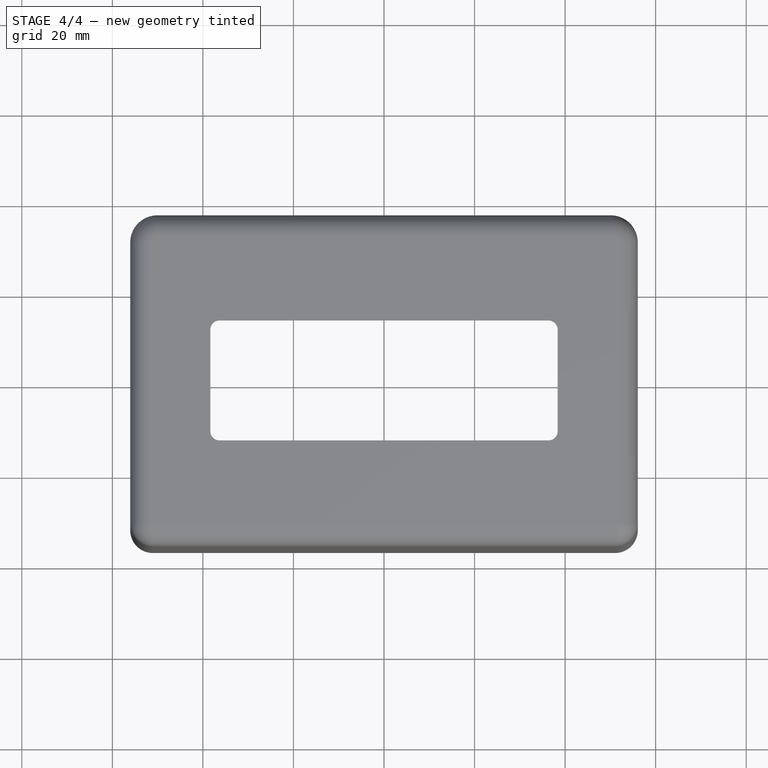
[diagram: stage 4 of 4 — top view after this stage's code; geometry added in this stage tinted green]
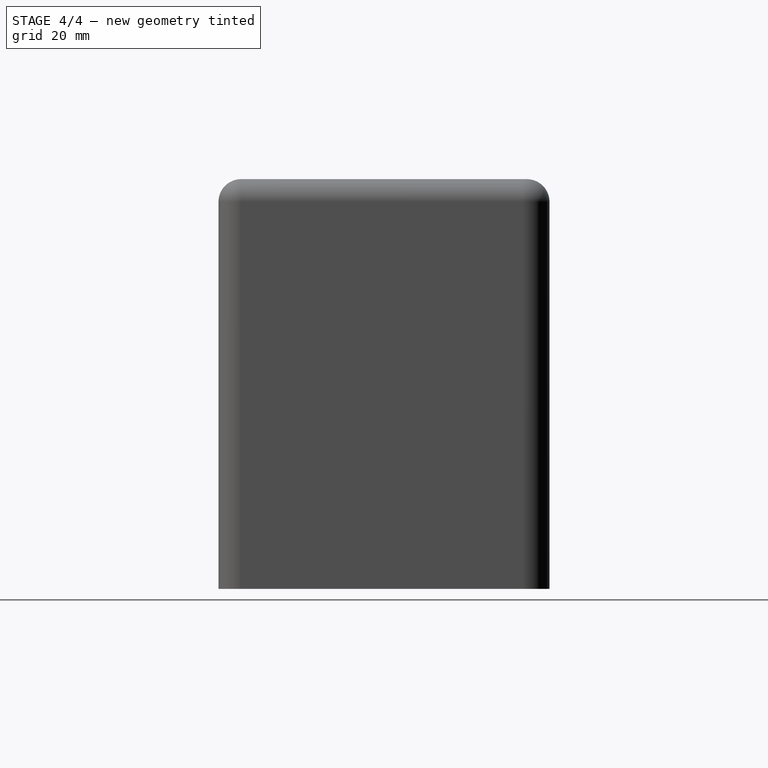
[diagram: stage 4 of 4 — right view after this stage's code; geometry added in this stage tinted green]
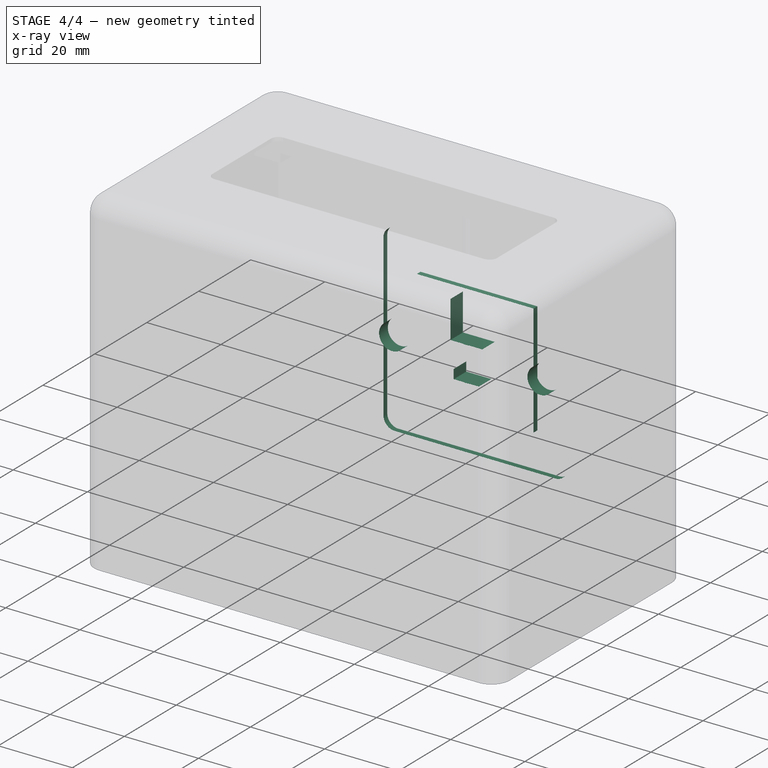
[diagram: stage 4 of 4 — x-ray composite at the iso view; earlier geometry ghosted, this stage's added geometry solid]
FEATURE [Sketcher::SketchObject] Sketch007
  FullyConstrained = false
  MapMode = 5
  Placement = pos=(0,0,0) rot=(1,0,0;1.5708rad)
  Support = -> [XZ_Plane]
  expr: Constraints[10] = <<data>>.button_len + <<data>>.space
  sketch-geometry (25):
    g0: LineSegment StartX=-3.4 StartY=-37.3 StartZ=0 EndX=-3.4 EndY=-44.1 EndZ=0
    g1: LineSegment StartX=-3.4 StartY=-44.1 StartZ=0 EndX=3.4 EndY=-44.1 EndZ=0
    g2: LineSegment StartX=3.4 StartY=-44.1 StartZ=0 EndX=3.4 EndY=-37.3 EndZ=0
    g3: LineSegment StartX=3.4 StartY=-37.3 StartZ=0 EndX=-3.4 EndY=-37.3 EndZ=0
    g4: GeomPoint X=0 Y=-40.7 Z=0
    g5: LineSegment StartX=3.4 StartY=-46.6 StartZ=0 EndX=3.4 EndY=-44.1 EndZ=0
    g6: LineSegment StartX=3.4 StartY=-44.1 StartZ=0 EndX=-3.4 EndY=-44.1 EndZ=0
    g7: LineSegment StartX=-3.4 StartY=-44.1 StartZ=0 EndX=-3.4 EndY=-46.6 EndZ=0
    g8: LineSegment StartX=-3.4 StartY=-46.6 StartZ=0 EndX=3.4 EndY=-46.6 EndZ=0
    g9: GeomPoint X=0 Y=-45.35 Z=0
    g10: LineSegment StartX=-4.31337 StartY=-27.3 StartZ=0 EndX=-4.31337 EndY=-37.3 EndZ=0
    g11: LineSegment StartX=-4.31337 StartY=-37.3 StartZ=0 EndX=4.31337 EndY=-37.3 EndZ=0
    g12: LineSegment StartX=4.31337 StartY=-37.3 StartZ=0 EndX=4.31337 EndY=-27.3 EndZ=0
    g13: LineSegment StartX=4.31337 StartY=-27.3 StartZ=0 EndX=-4.31337 EndY=-27.3 EndZ=0
    g14: GeomPoint X=0 Y=-32.3 Z=0
    g15: LineSegment StartX=0 StartY=-40.7 StartZ=0 EndX=-20 EndY=-40.7 EndZ=0
    g16: LineSegment StartX=0 StartY=-40.7 StartZ=0 EndX=20 EndY=-40.7 EndZ=0
    g17: Circle CenterX=-20 CenterY=-40.7 CenterZ=0 NormalX=0 NormalY=0 NormalZ=1 AngleXU=0 Radius=3.5
    g18: Circle CenterX=20 CenterY=-40.7 CenterZ=0 NormalX=0 NormalY=0 NormalZ=1 AngleXU=0 Radius=3.5
    g19: LineSegment StartX=-23.5 StartY=-19.4005 StartZ=0 EndX=-23.5 EndY=-61.9995 EndZ=0
    g20: LineSegment StartX=-23.5 StartY=-61.9995 StartZ=0 EndX=23.5 EndY=-61.9995 EndZ=0
    g21: LineSegment StartX=23.5 StartY=-61.9995 StartZ=0 EndX=23.5 EndY=-19.4005 EndZ=0
    g22: LineSegment StartX=23.5 StartY=-19.4005 StartZ=0 EndX=-23.5 EndY=-19.4005 EndZ=0
    g23: GeomPoint X=0 Y=-40.7 Z=0
    g24: GeomPoint X=0 Y=-40.7 Z=0
  constraints (60):
    c: Coincident(g0,g1)
    c: Coincident(g1,g2)
    c: Coincident(g2,g3)
    c: Coincident(g3,g0)
    c: Horizontal(g1)
    c: Horizontal(g3)
    c: Vertical(g0)
    c: Vertical(g2)
    c: Symmetric(g1,g0,g4)
    c: PointOnObject(g4,g-2)
    c: DistanceX(g1,g1) = 6.8
    c: Equal(g1,g2)
    c: Coincident(g5,g6)
    c: Coincident(g6,g7)
    c: Coincident(g7,g8)
    c: Coincident(g8,g5)
    c: Horizontal(g6)
    c: Horizontal(g8)
    c: Vertical(g5)
    c: Vertical(g7)
    c: Symmetric(g6,g5,g9)
    c: PointOnObject(g9,g-2)
    c: Coincident(g6,g0)
    c: DistanceY(g7,g7) = 2.5
    c: Coincident(g10,g11)
    c: Coincident(g11,g12)
    c: Coincident(g12,g13)
    c: Coincident(g13,g10)
    c: Horizontal(g11)
    c: Horizontal(g13)
    c: Vertical(g10)
    c: Vertical(g12)
    c: Symmetric(g11,g10,g14)
    c: PointOnObject(g14,g-2)
    c: PointOnObject(g2,g11)
    c: DistanceY(g10,g10) = 10
    c: Coincident(g15,g4)
    c: Horizontal(g15)
    c: Coincident(g16,g4)
    c: Horizontal(g16)
    c: Equal(g16,g15)
    c: Coincident(g17,g15)
    c: Coincident(g18,g16)
    c: Equal(g18,g17)
    c: Diameter(g17) = 7
    c: DistanceX(g15,g15) = 20
    c: DistanceY(g4,g12) = 13.4
    c: Coincident(g19,g20)
    c: Coincident(g20,g21)
    c: Coincident(g21,g22)
    c: Coincident(g22,g19)
    c: Horizontal(g20)
    c: Horizontal(g22)
    c: Vertical(g19)
    c: Vertical(g21)
    c: Symmetric(g20,g19,g23)
    c: Coincident(g23,g4)
    c: Tangent(g18,g21)
    c: Coincident(g24,g4)
    c: DistanceY(g4,g-1) = 40.7  'center'
FEATURE [PartDesign::Pocket] Pocket005
  BaseFeature = -> Pocket004
  Direction = (0,1,-2e-16)
  Length = 5
  Length2 = 5
  Profile = -> Sketch007
  ReferenceAxis = -> Sketch007 [N_Axis]
  Type = 1
FEATURE [Sketcher::SketchObject] Sketch008
  AttachmentOffset = pos=(0,0,-37.05) rot=(0,0,1;0rad)
  FullyConstrained = false
  MapMode = 5
  Placement = pos=(0,37.05,-8.2e-15) rot=(1,0,0;1.5708rad)
  Support = -> [XZ_Plane]
  expr: .AttachmentOffset.Base.z = -<<Sketch>>.Constraints.ylen / 2 - <<Sketch>>.Constraints.top_rad
  expr: Constraints[1] = Sketch007.Constraints.center
  sketch-geometry (11):
    g0: LineSegment StartX=0 StartY=0 StartZ=0 EndX=0 EndY=-40.7 EndZ=0
    g1: LineSegment StartX=-24.7082 StartY=-15.9918 StartZ=0 EndX=-24.7082 EndY=-65.4082 EndZ=0
    g2: LineSegment StartX=-24.7082 StartY=-65.4082 StartZ=0 EndX=24.7082 EndY=-65.4082 EndZ=0
    g3: LineSegment StartX=24.7082 StartY=-65.4082 StartZ=0 EndX=24.7082 EndY=-15.9918 EndZ=0
    g4: LineSegment StartX=24.7082 StartY=-15.9918 StartZ=0 EndX=-24.7082 EndY=-15.9918 EndZ=0
    g5: GeomPoint X=0 Y=-40.7 Z=0
    g6: LineSegment StartX=-15.7515 StartY=-25.564 StartZ=0 EndX=-15.7515 EndY=-55.836 EndZ=0
    g7: LineSegment StartX=-15.7515 StartY=-55.836 StartZ=0 EndX=15.7515 EndY=-55.836 EndZ=0
    g8: LineSegment StartX=15.7515 StartY=-55.836 StartZ=0 EndX=15.7515 EndY=-25.564 EndZ=0
    g9: LineSegment StartX=15.7515 StartY=-25.564 StartZ=0 EndX=-15.7515 EndY=-25.564 EndZ=0
    g10: GeomPoint X=0 Y=-40.7 Z=0
  constraints (24):
    c: Coincident(g0,g-1)
    c: DistanceY(g0,g0) = 40.7
    c: Coincident(g1,g2)
    c: Coincident(g2,g3)
    c: Coincident(g3,g4)
    c: Coincident(g4,g1)
    c: Horizontal(g2)
    c: Horizontal(g4)
    c: Vertical(g1)
    c: Vertical(g3)
    c: Symmetric(g2,g1,g5)
    c: Coincident(g5,g0)
    c: Equal(g2,g3)
    c: Coincident(g6,g7)
    c: Coincident(g7,g8)
    c: Coincident(g8,g9)
    c: Coincident(g9,g6)
    c: Horizontal(g7)
    c: Horizontal(g9)
    c: Vertical(g6)
    c: Vertical(g8)
    c: Symmetric(g7,g6,g10)
    c: Coincident(g10,g0)
    c: Vertical(g0)
FEATURE [PartDesign::Pocket] Pocket006
  BaseFeature = -> Pocket005
  Direction = (0,1,-2e-16)
  Length = 2
  Length2 = 5
  Profile = -> Sketch008
  ReferenceAxis = -> Sketch008 [N_Axis]
  Reversed = true
  Type = 0
FEATURE [PartDesign::Fillet] Fillet001
  Base = -> Pocket006 [Edge68,Edge70,Edge67,Edge65]
  BaseFeature = -> Pocket006
  Radius = 3
  SupportTransform = false
  UseAllEdges = false
  expr: Radius = 3
FEATURE [PartDesign::Body] Body
  Group = -> [Sketch,Pad,Sketch001,Pocket,Sketch002,Pocket001,Sketch003,Pocket002,Sketch004,Pocket003,Sketch005,Pad001,Fillet,Sketch006,Pocket004,Sketch007,Pocket005,Sketch008,Pocket006,Fillet001]
  Origin = -> Origin
  Tip = -> Fillet001
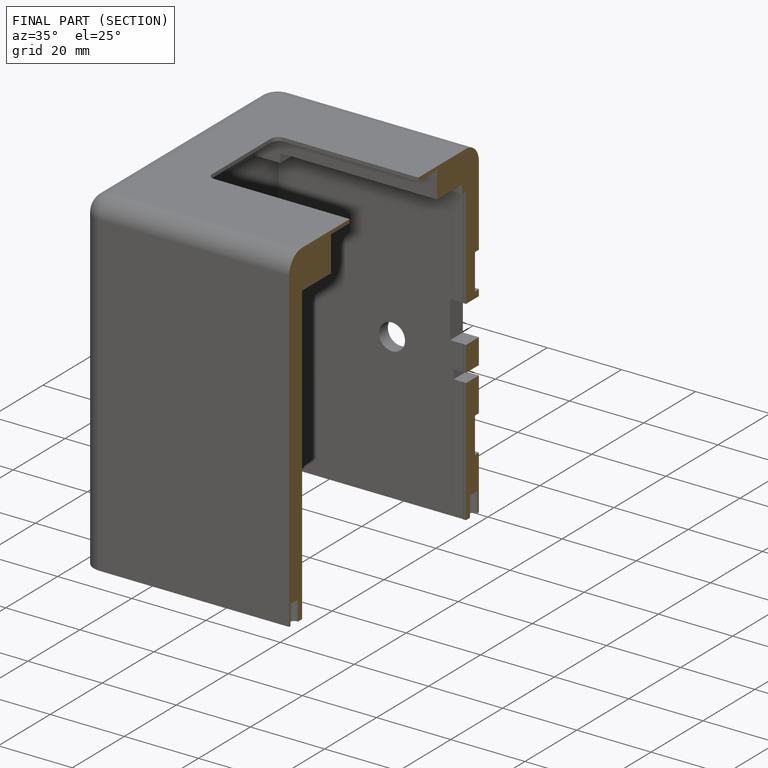
[diagram: finished part — half-section view (interior)]
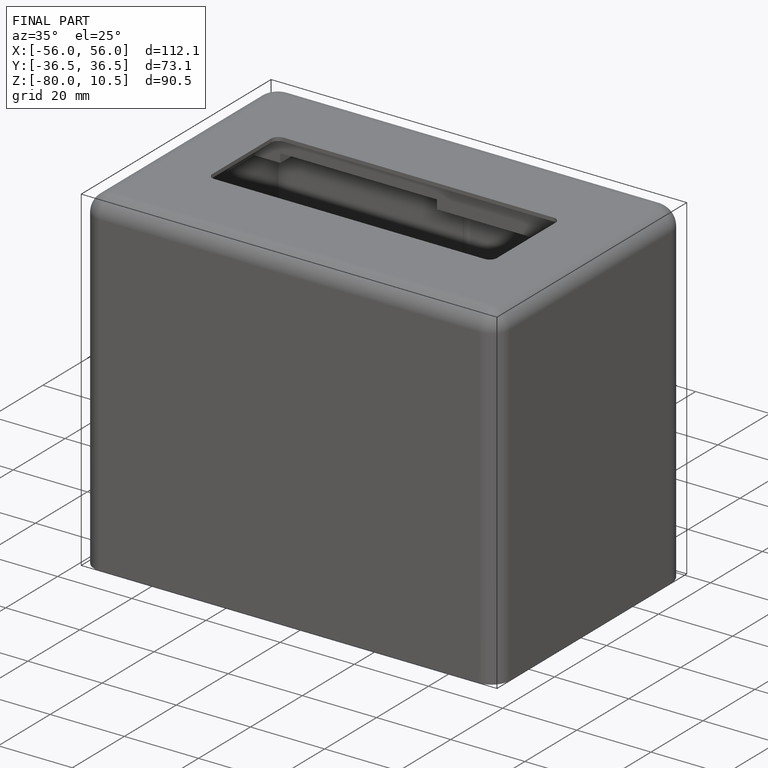
[diagram: finished part — iso view with bounding-box wireframe]
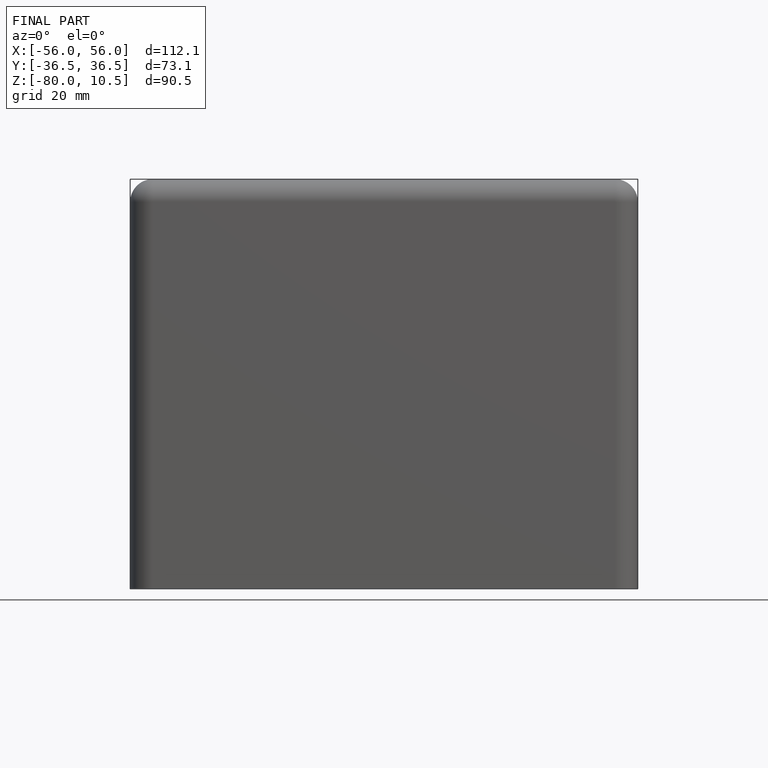
[diagram: finished part — front view with bounding-box wireframe]
